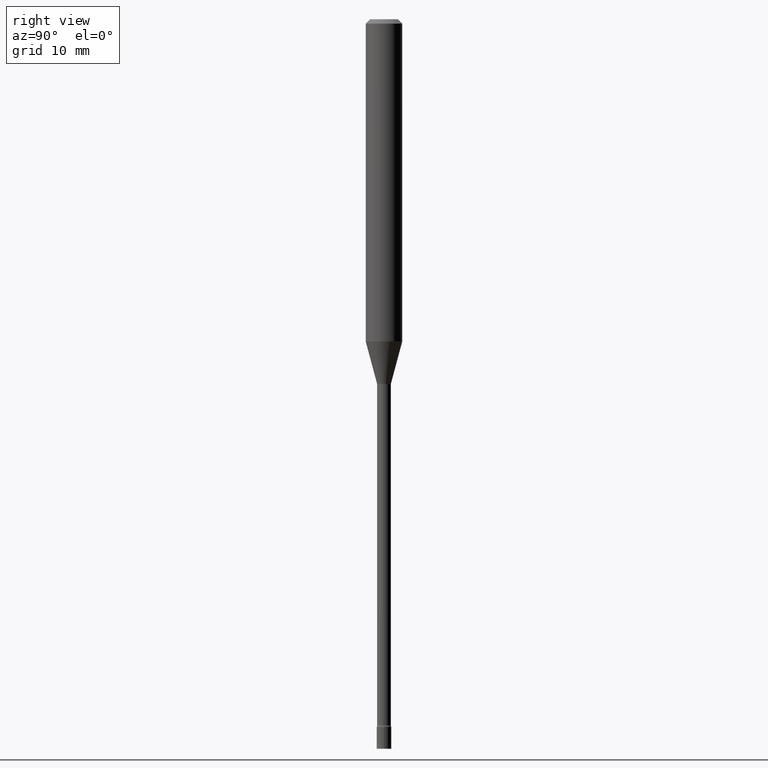
[diagram: clean part render]
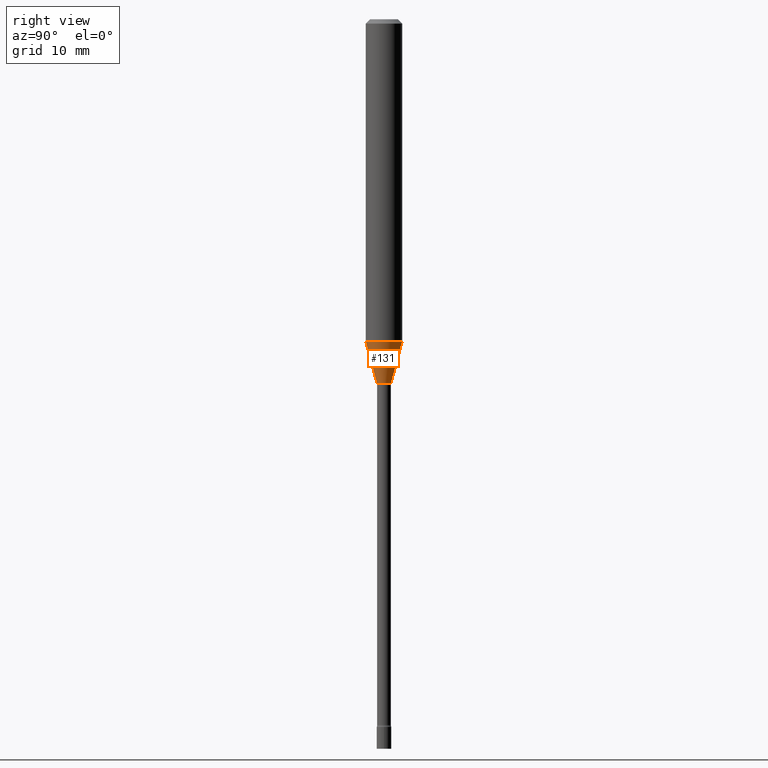
[diagram: same view with one face highlighted and labeled with its STEP entity id]
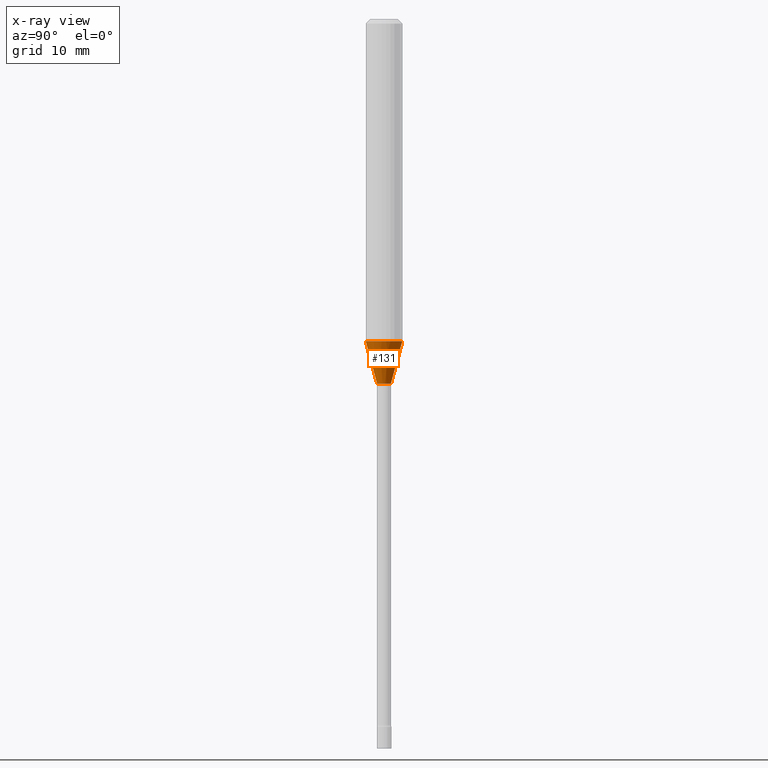
[diagram: x-ray of the same camera — body ghosted, the highlighted face saturated]
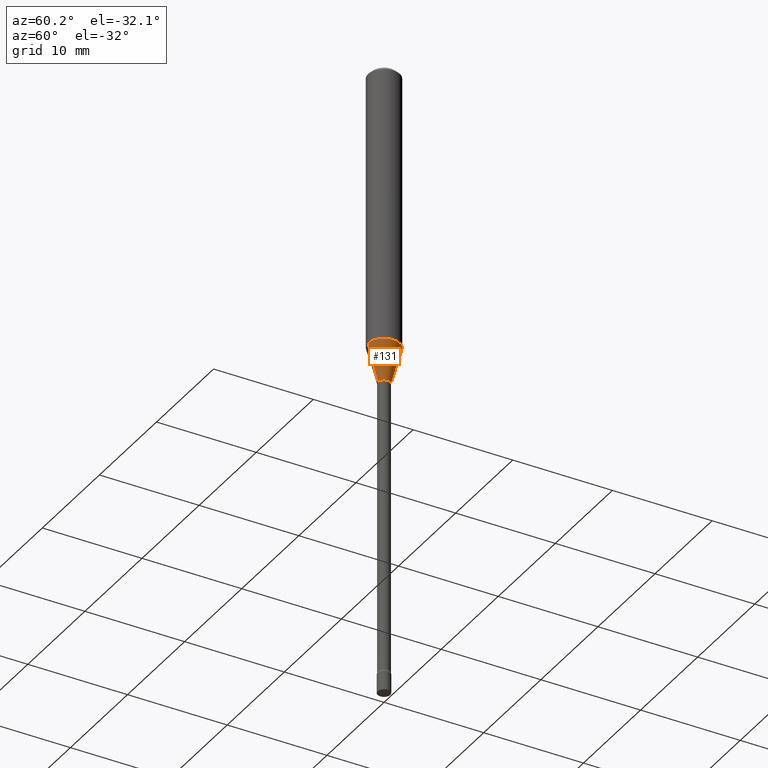
[diagram: same view with one face highlighted and labeled with its STEP entity id]
A machine part, right view. The second image highlights one B-rep face of the part: STEP entity #131.
The next image is the same camera in x-ray: the body ghosted, the highlighted face saturated — about 0% of this face is hidden behind the body in this view.
A second angle (auxiliary view) of the same face is appended — the face is thin or edge-on in the first view.
In plain terms, the highlighted conical surface has half-angle 15 deg.
Its self-contained STEP definition (entity closure, byte-faithful):
#1 = VECTOR ( 'NONE', #241, 39.37007874015748854 ) ;
#3 = VERTEX_POINT ( 'NONE', #417 ) ;
#6 = AXIS2_PLACEMENT_3D ( 'NONE', #469, #272, #75 ) ;
#37 = EDGE_CURVE ( 'NONE', #498, #132, #193, .T. ) ;
#58 = ORIENTED_EDGE ( 'NONE', *, *, #348, .F. ) ;
#63 = CARTESIAN_POINT ( 'NONE',  ( -1.676687031750432727E-16, -0.02401111260566833952, -1.248092501787273045 ) ) ;
#70 = FACE_OUTER_BOUND ( 'NONE', #261, .T. ) ;
#75 = DIRECTION ( 'NONE',  ( -6.982962677686265133E-15, -1.000000000000000000, 0.000000000000000000 ) ) ;
#87 = VERTEX_POINT ( 'NONE', #63 ) ;
#111 = CARTESIAN_POINT ( 'NONE',  ( -4.364351673553647988E-16, -0.06250000000000388578, -1.104450018504813613 ) ) ;
#119 = CARTESIAN_POINT ( 'NONE',  ( -1.676687031750432727E-16, -0.02401111260566833952, -1.248092501787273045 ) ) ;
#131 = ADVANCED_FACE ( 'NONE', ( #70 ), #458, .T. ) ;
#132 = VERTEX_POINT ( 'NONE', #242 ) ;
#141 = DIRECTION ( 'NONE',  ( -2.445461215800332779E-29, 3.491492208706202500E-15, 1.000000000000000000 ) ) ;
#173 = AXIS2_PLACEMENT_3D ( 'NONE', #449, #177, #517 ) ;
#177 = DIRECTION ( 'NONE',  ( -2.445461215800332779E-29, 3.491492208706202500E-15, 1.000000000000000000 ) ) ;
#193 = CIRCLE ( 'NONE', #375, 0.06250000000000000000 ) ;
#214 = EDGE_CURVE ( 'NONE', #87, #3, #412, .T. ) ;
#216 = ORIENTED_EDGE ( 'NONE', *, *, #214, .T. ) ;
#219 = CARTESIAN_POINT ( 'NONE',  ( 2.700889685043482305E-29, -3.856178634514979647E-15, -1.104450018504814057 ) ) ;
#231 = DIRECTION ( 'NONE',  ( -6.982962677686265922E-15, -1.000000000000000000, 4.370956789862821150E-15 ) ) ;
#241 = DIRECTION ( 'NONE',  ( -1.807323732225326195E-15, -0.2588190451025176309, 0.9659258262890690894 ) ) ;
#242 = CARTESIAN_POINT ( 'NONE',  ( 4.440892098500893388E-16, 0.06249999999999612116, -1.104450018504814057 ) ) ;
#261 = EDGE_LOOP ( 'NONE', ( #216, #485, #294, #58 ) ) ;
#272 = DIRECTION ( 'NONE',  ( -2.445461215800332779E-29, 3.491492208706202500E-15, 1.000000000000000000 ) ) ;
#294 = ORIENTED_EDGE ( 'NONE', *, *, #37, .F. ) ;
#346 = VECTOR ( 'NONE', #385, 39.37007874015748143 ) ;
#348 = EDGE_CURVE ( 'NONE', #87, #498, #512, .T. ) ;
#359 = LINE ( 'NONE', #511, #346 ) ;
#375 = AXIS2_PLACEMENT_3D ( 'NONE', #219, #141, #231 ) ;
#385 = DIRECTION ( 'NONE',  ( 1.839019923739596371E-15, 0.2588190451025244032, 0.9659258262890673130 ) ) ;
#412 = CIRCLE ( 'NONE', #173, 0.02401111260566398189 ) ;
#417 = CARTESIAN_POINT ( 'NONE',  ( 3.073492131224216559E-16, 0.02401111260565961733, -1.248092501787273045 ) ) ;
#449 = CARTESIAN_POINT ( 'NONE',  ( 3.052161806851984185E-29, -4.357705245734896146E-15, -1.248092501787273045 ) ) ;
#458 = CONICAL_SURFACE ( 'NONE', #6, 0.02401111260566398189, 0.2617993877991496854 ) ;
#462 = EDGE_CURVE ( 'NONE', #3, #132, #359, .T. ) ;
#469 = CARTESIAN_POINT ( 'NONE',  ( 3.052161806851984185E-29, -4.357705245734896146E-15, -1.248092501787273045 ) ) ;
#485 = ORIENTED_EDGE ( 'NONE', *, *, #462, .T. ) ;
#498 = VERTEX_POINT ( 'NONE', #111 ) ;
#511 = CARTESIAN_POINT ( 'NONE',  ( 1.706092163947536032E-16, 0.02401111260565962080, -1.248092501787273045 ) ) ;
#512 = LINE ( 'NONE', #119, #1 ) ;
#517 = DIRECTION ( 'NONE',  ( -6.982962677686265133E-15, -1.000000000000000000, 0.000000000000000000 ) ) ;